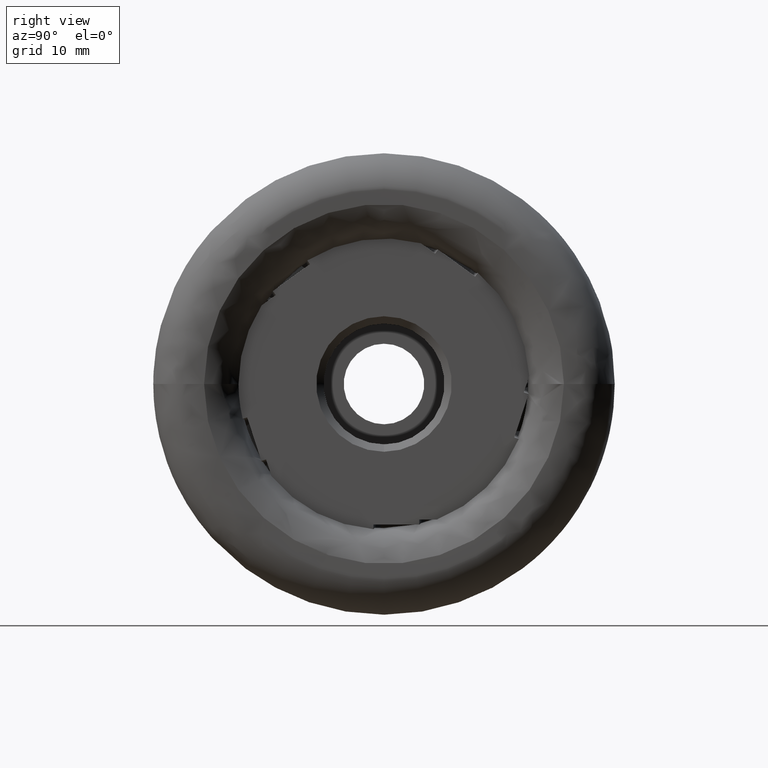
[diagram: clean part render]
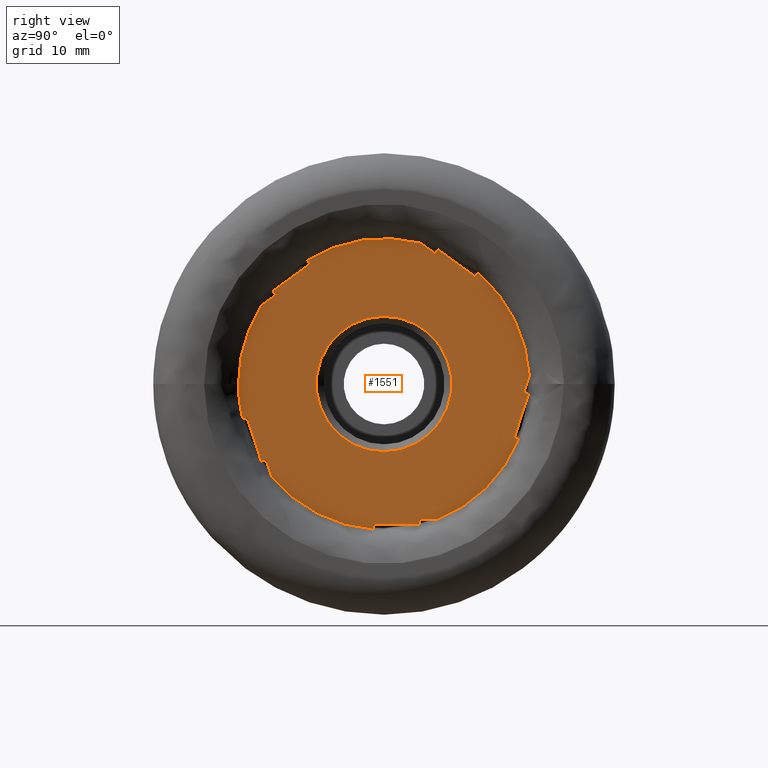
[diagram: same view with one face highlighted and labeled with its STEP entity id]
A machine part, right view. The second image highlights one B-rep face of the part: STEP entity #1551.
In plain terms, the highlighted planar face has unit normal (1, 0, -0).
Its self-contained STEP definition (entity closure, byte-faithful):
#80 = VERTEX_POINT ( 'NONE', #8558 ) ;
#107 = LINE ( 'NONE', #1985, #5331 ) ;
#138 = VERTEX_POINT ( 'NONE', #8132 ) ;
#142 = EDGE_CURVE ( 'NONE', #2419, #6132, #1644, .T. ) ;
#196 = CARTESIAN_POINT ( 'NONE',  ( -2.700000000000001500, 18.16293636311396000, 7.423568545863301600 ) ) ;
#228 = VERTEX_POINT ( 'NONE', #6210 ) ;
#368 = ORIENTED_EDGE ( 'NONE', *, *, #3866, .F. ) ;
#519 = EDGE_CURVE ( 'NONE', #80, #1160, #1407, .T. ) ;
#521 = LINE ( 'NONE', #6086, #1816 ) ;
#560 = ORIENTED_EDGE ( 'NONE', *, *, #5114, .F. ) ;
#567 = PLANE ( 'NONE',  #6211 ) ;
#596 = EDGE_CURVE ( 'NONE', #2988, #138, #4584, .T. ) ;
#605 = VERTEX_POINT ( 'NONE', #7370 ) ;
#634 = CARTESIAN_POINT ( 'NONE',  ( -2.700000000000004600, -19.28255470284630500, -4.743209036580396700 ) ) ;
#646 = DIRECTION ( 'NONE',  ( 0.0000000000000000000, 0.3090169943749446800, -0.9510565162951544200 ) ) ;
#707 = ORIENTED_EDGE ( 'NONE', *, *, #2093, .F. ) ;
#763 = ORIENTED_EDGE ( 'NONE', *, *, #1180, .F. ) ;
#771 = LINE ( 'NONE', #1272, #4480 ) ;
#816 = EDGE_CURVE ( 'NONE', #4338, #6132, #1399, .T. ) ;
#882 = VERTEX_POINT ( 'NONE', #6903 ) ;
#943 = CARTESIAN_POINT ( 'NONE',  ( -2.700000000000000200, 0.0000000000000000000, -9.250000000000003600 ) ) ;
#970 = ORIENTED_EDGE ( 'NONE', *, *, #596, .T. ) ;
#1006 = VERTEX_POINT ( 'NONE', #2189 ) ;
#1015 = ORIENTED_EDGE ( 'NONE', *, *, #5910, .F. ) ;
#1025 = CARTESIAN_POINT ( 'NONE',  ( -2.700000000000001100, 6.979942212959380200, 17.79603272301131500 ) ) ;
#1059 = EDGE_CURVE ( 'NONE', #4810, #228, #2607, .T. ) ;
#1111 = VECTOR ( 'NONE', #3264, 1000.000000000000200 ) ;
#1157 = ORIENTED_EDGE ( 'NONE', *, *, #816, .F. ) ;
#1160 = VERTEX_POINT ( 'NONE', #2718 ) ;
#1180 = EDGE_CURVE ( 'NONE', #2529, #5953, #5343, .T. ) ;
#1184 = VECTOR ( 'NONE', #2668, 1000.000000000000000 ) ;
#1222 = EDGE_CURVE ( 'NONE', #6455, #8682, #8793, .T. ) ;
#1272 = CARTESIAN_POINT ( 'NONE',  ( -2.700000000000001500, -15.62980788109266300, -11.76365517889524700 ) ) ;
#1370 = AXIS2_PLACEMENT_3D ( 'NONE', #6404, #2224, #5740 ) ;
#1399 = CIRCLE ( 'NONE', #6750, 19.85736507779816100 ) ;
#1407 = CIRCLE ( 'NONE', #5057, 19.85736507779816100 ) ;
#1520 = EDGE_CURVE ( 'NONE', #4338, #605, #8693, .T. ) ;
#1551 = ADVANCED_FACE ( 'NONE', ( #4129, #2281 ), #567, .T. ) ;
#1606 = ORIENTED_EDGE ( 'NONE', *, *, #2434, .F. ) ;
#1644 = LINE ( 'NONE', #1983, #1111 ) ;
#1739 = EDGE_CURVE ( 'NONE', #2529, #5814, #5006, .T. ) ;
#1816 = VECTOR ( 'NONE', #7465, 1000.000000000000100 ) ;
#1833 = VECTOR ( 'NONE', #5095, 1000.000000000000100 ) ;
#1875 = CARTESIAN_POINT ( 'NONE',  ( -2.700000000000002000, 7.376697258256805300, 18.34211919421440500 ) ) ;
#1884 = EDGE_LOOP ( 'NONE', ( #1947, #6603, #3746, #8434, #7253, #1157, #7735, #1606, #763, #5940, #707, #970, #1015, #560, #4119, #1999, #2647, #4088, #5232, #3532, #4624, #8866, #3870, #7387, #368, #4436 ) ) ;
#1894 = CARTESIAN_POINT ( 'NONE',  ( -2.700000000000001500, 20.20124637032736800, 0.1214399158191820600 ) ) ;
#1904 = DIRECTION ( 'NONE',  ( 0.0000000000000000000, 0.0000000000000000000, -1.000000000000000000 ) ) ;
#1905 = VERTEX_POINT ( 'NONE', #8656 ) ;
#1932 = CARTESIAN_POINT ( 'NONE',  ( -2.700000000000001500, 20.57499999999999900, -18.49999999999999600 ) ) ;
#1937 = CIRCLE ( 'NONE', #4143, 19.85736507779816100 ) ;
#1947 = ORIENTED_EDGE ( 'NONE', *, *, #5561, .F. ) ;
#1983 = CARTESIAN_POINT ( 'NONE',  ( -2.700000000000001500, 19.55928322182813900, 0.3300263870222801500 ) ) ;
#1985 = CARTESIAN_POINT ( 'NONE',  ( -2.700000000000001500, 2.195730116924300200, 25.29689477852603500 ) ) ;
#1999 = ORIENTED_EDGE ( 'NONE', *, *, #519, .F. ) ;
#2005 = CARTESIAN_POINT ( 'NONE',  ( -2.700000000000001500, 4.813353713861261000, 0.0000000000000000000 ) ) ;
#2032 = CARTESIAN_POINT ( 'NONE',  ( -2.700000000000004600, 0.0000000000000000000, 0.0000000000000000000 ) ) ;
#2093 = EDGE_CURVE ( 'NONE', #2988, #5814, #3571, .T. ) ;
#2164 = DIRECTION ( 'NONE',  ( -1.000000000000000000, 0.0000000000000000000, 0.0000000000000000000 ) ) ;
#2189 = CARTESIAN_POINT ( 'NONE',  ( -2.700000000000001100, -18.68383466647794200, -4.548673104235034800 ) ) ;
#2224 = DIRECTION ( 'NONE',  ( -1.000000000000000000, 0.0000000000000000000, 0.0000000000000000000 ) ) ;
#2275 = CARTESIAN_POINT ( 'NONE',  ( -2.700000000000003700, 19.82428995663888200, 1.145633251989830700 ) ) ;
#2281 = FACE_OUTER_BOUND ( 'NONE', #1884, .T. ) ;
#2305 = DIRECTION ( 'NONE',  ( 0.0000000000000000000, -1.000000000000000000, 4.828536909198326900E-017 ) ) ;
#2370 = DIRECTION ( 'NONE',  ( 0.0000000000000000000, 0.0000000000000000000, -1.000000000000000000 ) ) ;
#2419 = VERTEX_POINT ( 'NONE', #5853 ) ;
#2434 = EDGE_CURVE ( 'NONE', #5953, #605, #7578, .T. ) ;
#2529 = VERTEX_POINT ( 'NONE', #1025 ) ;
#2543 = DIRECTION ( 'NONE',  ( -1.000000000000000000, 0.0000000000000000000, 0.0000000000000000000 ) ) ;
#2549 = DIRECTION ( 'NONE',  ( 1.000000000000000000, -0.0000000000000000000, -0.0000000000000000000 ) ) ;
#2560 = VECTOR ( 'NONE', #2853, 1000.000000000000000 ) ;
#2581 = CARTESIAN_POINT ( 'NONE',  ( -2.700000000000000200, 0.0000000000000000000, 0.0000000000000000000 ) ) ;
#2607 = CIRCLE ( 'NONE', #5184, 9.250000000000003600 ) ;
#2647 = ORIENTED_EDGE ( 'NONE', *, *, #6531, .F. ) ;
#2668 = DIRECTION ( 'NONE',  ( 0.0000000000000000000, 0.0000000000000000000, 1.000000000000000000 ) ) ;
#2718 = CARTESIAN_POINT ( 'NONE',  ( -2.700000000000007300, -16.71157380639300200, 10.72558850350122300 ) ) ;
#2767 = DIRECTION ( 'NONE',  ( 0.0000000000000000000, 0.0000000000000000000, -1.000000000000000000 ) ) ;
#2774 = EDGE_CURVE ( 'NONE', #4327, #4798, #6080, .T. ) ;
#2803 = CARTESIAN_POINT ( 'NONE',  ( -2.700000000000001500, 2.592485162221713800, 24.75080830732294500 ) ) ;
#2853 = DIRECTION ( 'NONE',  ( 0.0000000000000000000, 1.000000000000000000, 0.0000000000000000000 ) ) ;
#2930 = VERTEX_POINT ( 'NONE', #6524 ) ;
#2941 = DIRECTION ( 'NONE',  ( 0.0000000000000000000, 0.0000000000000000000, -1.000000000000000000 ) ) ;
#2977 = DIRECTION ( 'NONE',  ( 0.0000000000000000000, -0.3090169943749446800, 0.9510565162951544200 ) ) ;
#2988 = VERTEX_POINT ( 'NONE', #8631 ) ;
#3087 = EDGE_CURVE ( 'NONE', #228, #4810, #6525, .T. ) ;
#3165 = VECTOR ( 'NONE', #3940, 999.9999999999998900 ) ;
#3264 = DIRECTION ( 'NONE',  ( 0.0000000000000000000, 0.3090169943749581600, 0.9510565162951499800 ) ) ;
#3285 = DIRECTION ( 'NONE',  ( 0.0000000000000000000, -0.3090169943749582200, -0.9510565162951499800 ) ) ;
#3323 = DIRECTION ( 'NONE',  ( 0.0000000000000000000, -0.9510565162951544200, -0.3090169943749446800 ) ) ;
#3364 = CARTESIAN_POINT ( 'NONE',  ( -2.700000000000001100, 4.813353713861261000, -18.49999999999999600 ) ) ;
#3415 = EDGE_CURVE ( 'NONE', #8682, #1006, #6822, .T. ) ;
#3424 = CARTESIAN_POINT ( 'NONE',  ( -2.700000000000001500, 20.57499999999999900, 0.0000000000000000000 ) ) ;
#3440 = LINE ( 'NONE', #5011, #8335 ) ;
#3457 = VECTOR ( 'NONE', #4878, 1000.000000000000000 ) ;
#3460 = VECTOR ( 'NONE', #6892, 1000.000000000000000 ) ;
#3512 = CARTESIAN_POINT ( 'NONE',  ( -2.700000000000001500, 20.09767042715308300, -1.469069368157792700 ) ) ;
#3528 = CARTESIAN_POINT ( 'NONE',  ( -2.700000000000001500, 3.214402715916074600, -12.61321223846118900 ) ) ;
#3532 = ORIENTED_EDGE ( 'NONE', *, *, #1222, .F. ) ;
#3571 = CIRCLE ( 'NONE', #1370, 19.85736507779816100 ) ;
#3693 = VECTOR ( 'NONE', #3285, 1000.000000000000200 ) ;
#3746 = ORIENTED_EDGE ( 'NONE', *, *, #5594, .F. ) ;
#3801 = EDGE_CURVE ( 'NONE', #7896, #1905, #521, .T. ) ;
#3856 = CARTESIAN_POINT ( 'NONE',  ( -2.700000000000001100, -16.74910060243870500, -10.50317228194080200 ) ) ;
#3858 = VERTEX_POINT ( 'NONE', #4725 ) ;
#3866 = EDGE_CURVE ( 'NONE', #7442, #2930, #8548, .T. ) ;
#3870 = ORIENTED_EDGE ( 'NONE', *, *, #2774, .T. ) ;
#3897 = CIRCLE ( 'NONE', #8253, 19.85736507779816100 ) ;
#3940 = DIRECTION ( 'NONE',  ( 0.0000000000000000000, 0.5877852522924685900, -0.8090169943749507800 ) ) ;
#3956 = DIRECTION ( 'NONE',  ( 0.0000000000000000000, 0.0000000000000000000, -1.000000000000000000 ) ) ;
#4030 = EDGE_CURVE ( 'NONE', #4327, #3858, #3897, .T. ) ;
#4088 = ORIENTED_EDGE ( 'NONE', *, *, #4958, .T. ) ;
#4116 = CIRCLE ( 'NONE', #7813, 19.85736507779816100 ) ;
#4119 = ORIENTED_EDGE ( 'NONE', *, *, #8015, .T. ) ;
#4129 = FACE_BOUND ( 'NONE', #7954, .T. ) ;
#4143 = AXIS2_PLACEMENT_3D ( 'NONE', #4729, #2543, #5375 ) ;
#4191 = LINE ( 'NONE', #1932, #2560 ) ;
#4215 = ORIENTED_EDGE ( 'NONE', *, *, #3087, .F. ) ;
#4231 = DIRECTION ( 'NONE',  ( 0.0000000000000000000, 0.9510565162951499800, -0.3090169943749581600 ) ) ;
#4327 = VERTEX_POINT ( 'NONE', #8392 ) ;
#4338 = VERTEX_POINT ( 'NONE', #6375 ) ;
#4361 = LINE ( 'NONE', #3528, #3457 ) ;
#4413 = CARTESIAN_POINT ( 'NONE',  ( -2.700000000000004600, 0.0000000000000000000, 0.0000000000000000000 ) ) ;
#4436 = ORIENTED_EDGE ( 'NONE', *, *, #8537, .T. ) ;
#4480 = VECTOR ( 'NONE', #646, 1000.000000000000100 ) ;
#4584 = LINE ( 'NONE', #4586, #3165 ) ;
#4586 = CARTESIAN_POINT ( 'NONE',  ( -2.700000000000001500, 8.279602254763053900, -8.933129360655756900 ) ) ;
#4624 = ORIENTED_EDGE ( 'NONE', *, *, #5401, .T. ) ;
#4716 = CARTESIAN_POINT ( 'NONE',  ( -2.700000000000001500, 8.279602254763325700, 8.933129360655833300 ) ) ;
#4725 = CARTESIAN_POINT ( 'NONE',  ( -2.699999999999998800, -15.36480114628185200, -12.57926204386307000 ) ) ;
#4729 = CARTESIAN_POINT ( 'NONE',  ( -2.700000000000004600, 0.0000000000000000000, 0.0000000000000000000 ) ) ;
#4798 = VERTEX_POINT ( 'NONE', #5860 ) ;
#4806 = VERTEX_POINT ( 'NONE', #6500 ) ;
#4810 = VERTEX_POINT ( 'NONE', #943 ) ;
#4878 = DIRECTION ( 'NONE',  ( 0.0000000000000000000, -0.5877852522924685900, 0.8090169943749507800 ) ) ;
#4912 = CARTESIAN_POINT ( 'NONE',  ( -2.700000000000004600, 0.0000000000000000000, 0.0000000000000000000 ) ) ;
#4958 = EDGE_CURVE ( 'NONE', #6030, #1006, #6656, .T. ) ;
#5001 = VECTOR ( 'NONE', #4231, 1000.000000000000200 ) ;
#5006 = LINE ( 'NONE', #6427, #5534 ) ;
#5011 = CARTESIAN_POINT ( 'NONE',  ( -2.700000000000001500, 20.57499999999999900, -19.17500000000000100 ) ) ;
#5057 = AXIS2_PLACEMENT_3D ( 'NONE', #7918, #5900, #6597 ) ;
#5095 = DIRECTION ( 'NONE',  ( 0.0000000000000000000, 0.8090169943749422300, -0.5877852522924802400 ) ) ;
#5114 = EDGE_CURVE ( 'NONE', #8290, #4806, #4361, .T. ) ;
#5141 = ORIENTED_EDGE ( 'NONE', *, *, #1059, .F. ) ;
#5184 = AXIS2_PLACEMENT_3D ( 'NONE', #7440, #7360, #1904 ) ;
#5232 = ORIENTED_EDGE ( 'NONE', *, *, #3415, .F. ) ;
#5331 = VECTOR ( 'NONE', #7511, 1000.000000000000100 ) ;
#5343 = LINE ( 'NONE', #8247, #3460 ) ;
#5375 = DIRECTION ( 'NONE',  ( 0.0000000000000000000, -1.776356839400250500E-015, -1.000000000000000000 ) ) ;
#5401 = EDGE_CURVE ( 'NONE', #6455, #3858, #771, .T. ) ;
#5499 = DIRECTION ( 'NONE',  ( 1.000000000000000000, 0.0000000000000000000, -0.0000000000000000000 ) ) ;
#5528 = CARTESIAN_POINT ( 'NONE',  ( -2.700000000000001500, 20.09767042715319000, 1.469069368157532600 ) ) ;
#5534 = VECTOR ( 'NONE', #7212, 1000.000000000000000 ) ;
#5537 = EDGE_CURVE ( 'NONE', #2419, #882, #6841, .T. ) ;
#5561 = EDGE_CURVE ( 'NONE', #7896, #5829, #1937, .T. ) ;
#5594 = EDGE_CURVE ( 'NONE', #882, #1905, #6646, .T. ) ;
#5740 = DIRECTION ( 'NONE',  ( 0.0000000000000000000, 1.776356839400250500E-015, -1.000000000000000000 ) ) ;
#5753 = CARTESIAN_POINT ( 'NONE',  ( -2.700000000000004600, 18.38790276980950700, -7.496664562389723200 ) ) ;
#5814 = VERTEX_POINT ( 'NONE', #7384 ) ;
#5829 = VERTEX_POINT ( 'NONE', #6696 ) ;
#5853 = CARTESIAN_POINT ( 'NONE',  ( -2.700000000000002000, 19.08195364898122300, -1.139042981135511600 ) ) ;
#5860 = CARTESIAN_POINT ( 'NONE',  ( -2.700000000000001100, -1.447577235754172500, -19.17500000000000100 ) ) ;
#5867 = DIRECTION ( 'NONE',  ( -1.000000000000000000, 0.0000000000000000000, 0.0000000000000000000 ) ) ;
#5900 = DIRECTION ( 'NONE',  ( -1.000000000000000000, 0.0000000000000000000, 0.0000000000000000000 ) ) ;
#5910 = EDGE_CURVE ( 'NONE', #4806, #138, #107, .T. ) ;
#5921 = CARTESIAN_POINT ( 'NONE',  ( -2.700000000000002000, -14.76811212186221100, 12.13759606886175400 ) ) ;
#5940 = ORIENTED_EDGE ( 'NONE', *, *, #1739, .T. ) ;
#5953 = VERTEX_POINT ( 'NONE', #1875 ) ;
#6030 = VERTEX_POINT ( 'NONE', #634 ) ;
#6080 = LINE ( 'NONE', #8169, #1184 ) ;
#6086 = CARTESIAN_POINT ( 'NONE',  ( -2.700000000000001500, 18.16293636311376900, -7.423568545863533400 ) ) ;
#6132 = VERTEX_POINT ( 'NONE', #2275 ) ;
#6154 = EDGE_CURVE ( 'NONE', #2930, #4798, #3440, .T. ) ;
#6210 = CARTESIAN_POINT ( 'NONE',  ( -2.700000000000000200, 1.132798289211302100E-015, 9.250000000000003600 ) ) ;
#6211 = AXIS2_PLACEMENT_3D ( 'NONE', #3424, #5499, #8227 ) ;
#6375 = CARTESIAN_POINT ( 'NONE',  ( -2.700000000000004600, 12.81192612932496100, 15.17133799932221400 ) ) ;
#6404 = CARTESIAN_POINT ( 'NONE',  ( -2.700000000000004600, 0.0000000000000000000, 0.0000000000000000000 ) ) ;
#6427 = CARTESIAN_POINT ( 'NONE',  ( -2.700000000000001500, 24.34053949704298200, 5.182820484549980100 ) ) ;
#6455 = VERTEX_POINT ( 'NONE', #8436 ) ;
#6500 = CARTESIAN_POINT ( 'NONE',  ( -2.700000000000001100, -15.16486716715962800, 12.68368254006484900 ) ) ;
#6524 = CARTESIAN_POINT ( 'NONE',  ( -2.700000000000000200, 4.813353713861261000, -19.17499999999999700 ) ) ;
#6525 = CIRCLE ( 'NONE', #7853, 9.250000000000003600 ) ;
#6531 = EDGE_CURVE ( 'NONE', #6030, #80, #4116, .T. ) ;
#6597 = DIRECTION ( 'NONE',  ( 0.0000000000000000000, 8.881784197001252300E-016, -1.000000000000000000 ) ) ;
#6603 = ORIENTED_EDGE ( 'NONE', *, *, #3801, .T. ) ;
#6646 = LINE ( 'NONE', #1894, #3693 ) ;
#6656 = LINE ( 'NONE', #196, #6850 ) ;
#6696 = CARTESIAN_POINT ( 'NONE',  ( -2.700000000000003700, 7.215604467607551700, -18.50000000000000400 ) ) ;
#6724 = VECTOR ( 'NONE', #8207, 1000.000000000000000 ) ;
#6750 = AXIS2_PLACEMENT_3D ( 'NONE', #2032, #2164, #2767 ) ;
#6822 = LINE ( 'NONE', #7764, #8440 ) ;
#6841 = LINE ( 'NONE', #3512, #5001 ) ;
#6850 = VECTOR ( 'NONE', #7834, 1000.000000000000100 ) ;
#6892 = DIRECTION ( 'NONE',  ( 0.0000000000000000000, 0.5877852522924802400, 0.8090169943749422300 ) ) ;
#6901 = DIRECTION ( 'NONE',  ( -0.0000000000000000000, -0.8090169943749506700, -0.5877852522924687000 ) ) ;
#6903 = CARTESIAN_POINT ( 'NONE',  ( -2.700000000000002800, 19.72391679748045600, -1.347629452338609900 ) ) ;
#6955 = VECTOR ( 'NONE', #7622, 1000.000000000000000 ) ;
#6964 = VECTOR ( 'NONE', #3323, 1000.000000000000200 ) ;
#6976 = DIRECTION ( 'NONE',  ( -1.000000000000000000, 0.0000000000000000000, 0.0000000000000000000 ) ) ;
#7212 = DIRECTION ( 'NONE',  ( 0.0000000000000000000, -0.8090169943749422300, 0.5877852522924802400 ) ) ;
#7253 = ORIENTED_EDGE ( 'NONE', *, *, #142, .T. ) ;
#7360 = DIRECTION ( 'NONE',  ( 1.000000000000000000, -0.0000000000000000000, -0.0000000000000000000 ) ) ;
#7370 = CARTESIAN_POINT ( 'NONE',  ( -2.700000000000000200, 12.44189679710373400, 14.66203631640890100 ) ) ;
#7384 = CARTESIAN_POINT ( 'NONE',  ( -2.700000000000007300, 5.036480528428605800, 19.20804028837188700 ) ) ;
#7387 = ORIENTED_EDGE ( 'NONE', *, *, #6154, .F. ) ;
#7440 = CARTESIAN_POINT ( 'NONE',  ( -2.700000000000000200, 0.0000000000000000000, 0.0000000000000000000 ) ) ;
#7442 = VERTEX_POINT ( 'NONE', #3364 ) ;
#7465 = DIRECTION ( 'NONE',  ( 0.0000000000000000000, -0.9510565162951499800, 0.3090169943749582200 ) ) ;
#7511 = DIRECTION ( 'NONE',  ( 0.0000000000000000000, 0.8090169943749507800, 0.5877852522924685900 ) ) ;
#7578 = LINE ( 'NONE', #7902, #1833 ) ;
#7622 = DIRECTION ( 'NONE',  ( -0.0000000000000000000, -0.5877852522924802400, -0.8090169943749423400 ) ) ;
#7735 = ORIENTED_EDGE ( 'NONE', *, *, #1520, .T. ) ;
#7764 = CARTESIAN_POINT ( 'NONE',  ( -2.700000000000001500, -16.27177102959190700, -11.97224165009834000 ) ) ;
#7813 = AXIS2_PLACEMENT_3D ( 'NONE', #4413, #5867, #2370 ) ;
#7834 = DIRECTION ( 'NONE',  ( 0.0000000000000000000, 0.9510565162951544200, 0.3090169943749446800 ) ) ;
#7853 = AXIS2_PLACEMENT_3D ( 'NONE', #2581, #2549, #3956 ) ;
#7896 = VERTEX_POINT ( 'NONE', #5753 ) ;
#7897 = LINE ( 'NONE', #2803, #8313 ) ;
#7902 = CARTESIAN_POINT ( 'NONE',  ( -2.700000000000001500, 24.73729454234040800, 5.728906955753069000 ) ) ;
#7918 = CARTESIAN_POINT ( 'NONE',  ( -2.700000000000004600, 0.0000000000000000000, 0.0000000000000000000 ) ) ;
#7954 = EDGE_LOOP ( 'NONE', ( #5141, #4215 ) ) ;
#8015 = EDGE_CURVE ( 'NONE', #8290, #1160, #7897, .T. ) ;
#8132 = CARTESIAN_POINT ( 'NONE',  ( -2.700000000000001100, -10.09966762831264700, 16.36376541787028300 ) ) ;
#8169 = CARTESIAN_POINT ( 'NONE',  ( -2.700000000000001500, -1.447577235754171600, 0.0000000000000000000 ) ) ;
#8207 = DIRECTION ( 'NONE',  ( 0.0000000000000000000, 0.0000000000000000000, -1.000000000000000000 ) ) ;
#8227 = DIRECTION ( 'NONE',  ( -0.0000000000000000000, 0.0000000000000000000, -1.000000000000000000 ) ) ;
#8247 = CARTESIAN_POINT ( 'NONE',  ( -2.700000000000001500, 3.214402715916400600, 12.61321223846133500 ) ) ;
#8253 = AXIS2_PLACEMENT_3D ( 'NONE', #4912, #6976, #2941 ) ;
#8290 = VERTEX_POINT ( 'NONE', #5921 ) ;
#8313 = VECTOR ( 'NONE', #6901, 999.9999999999998900 ) ;
#8335 = VECTOR ( 'NONE', #2305, 1000.000000000000000 ) ;
#8392 = CARTESIAN_POINT ( 'NONE',  ( -2.700000000000004600, -1.447577235754171200, -19.80453150113590200 ) ) ;
#8434 = ORIENTED_EDGE ( 'NONE', *, *, #5537, .F. ) ;
#8436 = CARTESIAN_POINT ( 'NONE',  ( -2.700000000000001100, -16.10713745393946900, -10.29458581073771500 ) ) ;
#8440 = VECTOR ( 'NONE', #2977, 1000.000000000000100 ) ;
#8537 = EDGE_CURVE ( 'NONE', #7442, #5829, #4191, .T. ) ;
#8548 = LINE ( 'NONE', #2005, #6724 ) ;
#8558 = CARTESIAN_POINT ( 'NONE',  ( -2.700000000000004600, -19.85736507779816100, 2.431825858202696300E-015 ) ) ;
#8631 = CARTESIAN_POINT ( 'NONE',  ( -2.700000000000004600, -10.46969696053387000, 16.87306710078360100 ) ) ;
#8656 = CARTESIAN_POINT ( 'NONE',  ( -2.700000000000001100, 17.78918273344114100, -7.302128630044351500 ) ) ;
#8682 = VERTEX_POINT ( 'NONE', #3856 ) ;
#8693 = LINE ( 'NONE', #4716, #6955 ) ;
#8793 = LINE ( 'NONE', #5528, #6964 ) ;
#8866 = ORIENTED_EDGE ( 'NONE', *, *, #4030, .F. ) ;